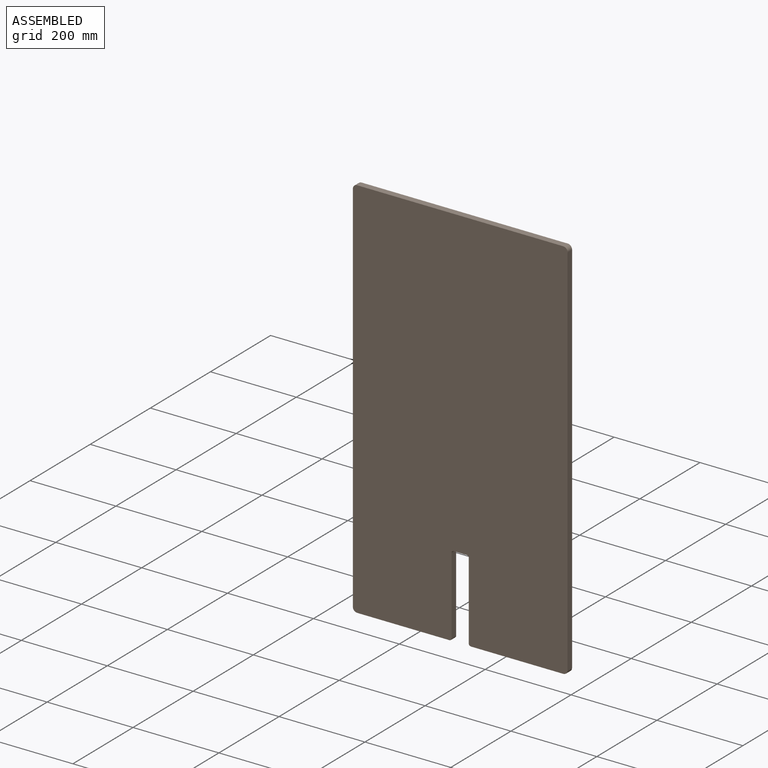
[diagram: assembled view]
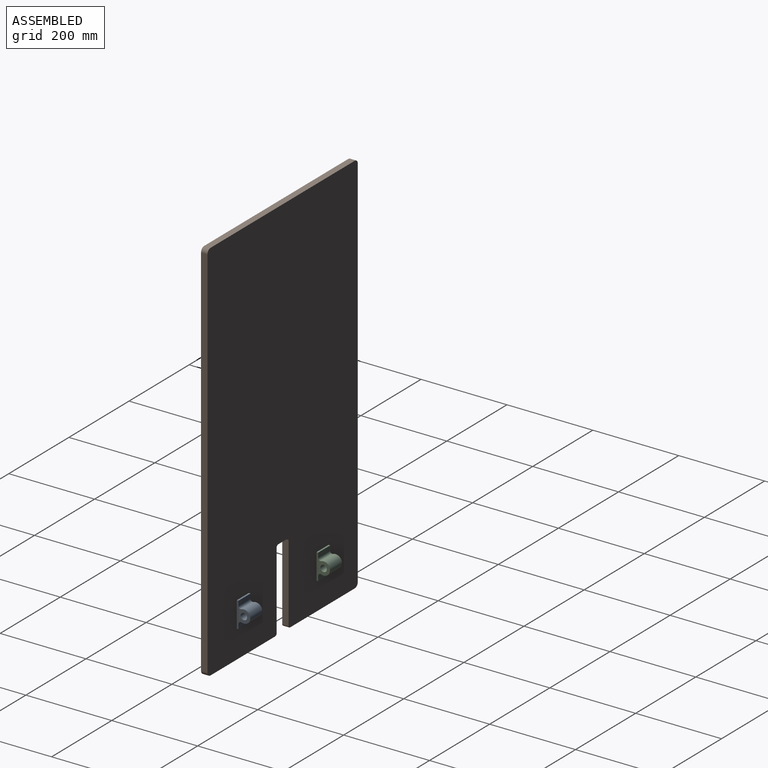
[diagram: assembled view, second angle]
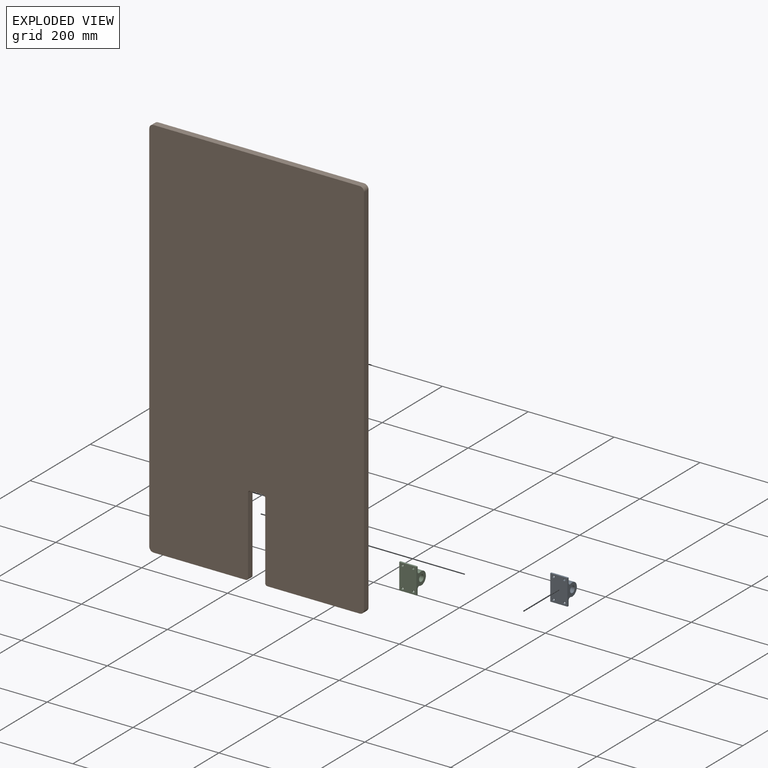
[diagram: exploded view]
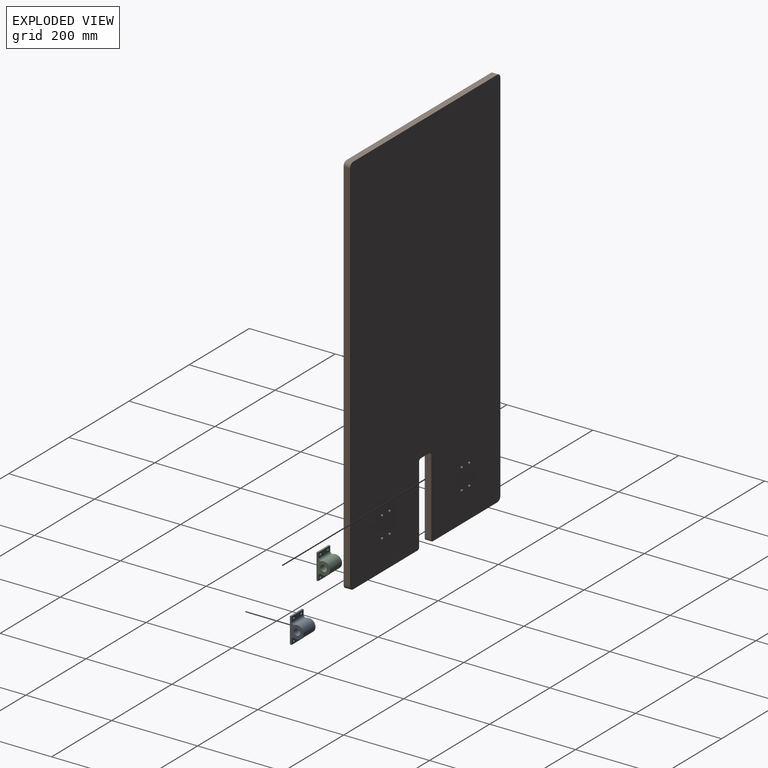
[diagram: exploded view, second angle]
ASSEMBLY  parts=3 mates=2
PART A: 15 faces, bbox 60x40x31.5 mm
  f0: plane 40x11.46mm, normal (0,0,1), area 419.1mm2, adj f1,f7,f8,f10,f13,f14
  f1: plane 40x4mm, normal (-1,0,0), area 160mm2, adj f0,f2,f7,f8
  f2: plane 60x40mm, normal (0,0,-1), area 2321.5mm2, adj f1,f3,f7,f8,f11,f12,f13,f14
  f3: plane 40x4mm, normal (1,0,0), area 160mm2, adj f2,f4,f7,f8
  f4: plane 40x11.46mm, normal (0,0,1), area 419.1mm2, adj f3,f7,f8,f9,f11,f12
  f5: cylinder r=7.5mm len=40mm, axis (0,1,0), area 1885mm2, adj f7,f8
  f6: cylinder r=15mm len=40mm, axis (0,1,0), area 2346.2mm2, adj f7,f8,f9,f10
  f7: plane 60x31.5mm, normal (0,-1,0), area 778.8mm2, adj f0,f1,f2,f3,f4,f5,f6,f9
  f8: plane 60x31.5mm, normal (0,1,0), area 778.8mm2, adj f0,f1,f2,f3,f4,f5,f6,f9
  f9: cylinder r=5mm len=40mm, axis (0,1,0), area 391mm2, adj f4,f6,f7,f8
  f10: cylinder r=5mm len=40mm, axis (0,1,0), area 391mm2, adj f0,f6,f7,f8
  f11: cylinder r=2.5mm len=5mm, axis (0,0,1), area 62.8mm2, adj f2,f4
  f12: cylinder r=2.5mm len=5mm, axis (0,0,1), area 62.8mm2, adj f2,f4
  f13: cylinder r=2.5mm len=5mm, axis (0,0,1), area 62.8mm2, adj f0,f2
  f14: cylinder r=2.5mm len=5mm, axis (0,0,1), area 62.8mm2, adj f0,f2
PART B: 34 faces, bbox 500x19x900 mm
  f0: plane 215x15mm, normal (0,0,-1), area 3225mm2, adj f8,f9,f10,f17
  f1: plane 180x15mm, normal (1,0,0), area 2700mm2, adj f8,f9,f10,f11
  f2: plane 30x15mm, normal (0,0,-1), area 450mm2, adj f8,f9,f11,f12
  f3: plane 180x15mm, normal (-1,0,0), area 2700mm2, adj f8,f9,f12,f13
  f4: plane 215x15mm, normal (0,0,-1), area 3225mm2, adj f8,f9,f13,f14
  f5: plane 880x15mm, normal (1,0,0), area 13200mm2, adj f8,f9,f14,f15
  f6: plane 480x15mm, normal (0,0,1), area 7200mm2, adj f8,f9,f15,f16
  f7: plane 880x15mm, normal (-1,0,0), area 13200mm2, adj f8,f9,f16,f17
  f8: plane 900x500mm, normal (0,-1,0), area 442314.2mm2, adj f0,f1,f2,f3,f4,f5,f6,f7
  f9: plane 900x500mm, normal (0,1,0), area 442157.1mm2, adj f0,f1,f2,f3,f4,f5,f6,f7
  f10: cylinder r=5mm len=15mm, axis (0,-1,0), area 117.8mm2, adj f0,f1,f8,f9
  f11: cylinder r=5mm len=15mm, axis (0,-1,0), area 117.8mm2, adj f1,f2,f8,f9
  f12: cylinder r=5mm len=15mm, axis (0,-1,0), area 117.8mm2, adj f2,f3,f8,f9
  f13: cylinder r=5mm len=15mm, axis (0,-1,0), area 117.8mm2, adj f3,f4,f8,f9
  f14: cylinder r=10mm len=15mm, axis (0,1,0), area 235.6mm2, adj f4,f5,f8,f9
  f15: cylinder r=10mm len=15mm, axis (0,-1,0), area 235.6mm2, adj f5,f6,f8,f9
  f16: cylinder r=10mm len=15mm, axis (0,1,0), area 235.6mm2, adj f6,f7,f8,f9
  f17: cylinder r=10mm len=15mm, axis (0,-1,0), area 235.6mm2, adj f0,f7,f8,f9
  f18: cylinder r=2.5mm len=5mm, axis (0,-1,0), area 62.8mm2, adj f9,f19
  f19: plane 5x5mm, normal (0,1,0), area 19.6mm2, adj f18
  f20: cylinder r=2.5mm len=5mm, axis (0,-1,0), area 62.8mm2, adj f9,f21
  f21: plane 5x5mm, normal (0,1,0), area 19.6mm2, adj f20
  f22: cylinder r=2.5mm len=5mm, axis (0,-1,0), area 62.8mm2, adj f9,f23
  f23: plane 5x5mm, normal (0,1,0), area 19.6mm2, adj f22
  f24: cylinder r=2.5mm len=5mm, axis (0,-1,0), area 62.8mm2, adj f9,f25
  f25: plane 5x5mm, normal (0,1,0), area 19.6mm2, adj f24
  f26: cylinder r=2.5mm len=5mm, axis (0,-1,0), area 62.8mm2, adj f9,f27
  f27: plane 5x5mm, normal (0,1,0), area 19.6mm2, adj f26
  f28: cylinder r=2.5mm len=5mm, axis (0,-1,0), area 62.8mm2, adj f9,f29
  f29: plane 5x5mm, normal (0,1,0), area 19.6mm2, adj f28
  f30: cylinder r=2.5mm len=5mm, axis (0,-1,0), area 62.8mm2, adj f9,f31
  f31: plane 5x5mm, normal (0,1,0), area 19.6mm2, adj f30
  f32: cylinder r=2.5mm len=5mm, axis (0,-1,0), area 62.8mm2, adj f9,f33
  f33: plane 5x5mm, normal (0,1,0), area 19.6mm2, adj f32
PART C: same geometry as A
PLACE A rot(axis=(-0.58,0.58,0.58),120deg) t=(225.12,58.81,-365.6)mm
PLACE B rot(axis=(-0.99,-0.15,-0.02),0deg) t=(112.62,56.81,-10.6)mm
PLACE C rot(axis=(-0.58,-0.58,-0.58),120deg) t=(0.12,58.81,-365.6)mm
MATE fastened A.f13 <-> B.f20  axis (0,1,0) through (232.62,56.81,-341.33)mm
MATE fastened C.f11 <-> B.f32  axis (0,-1,0) through (-32.38,56.81,-341.33)mm
